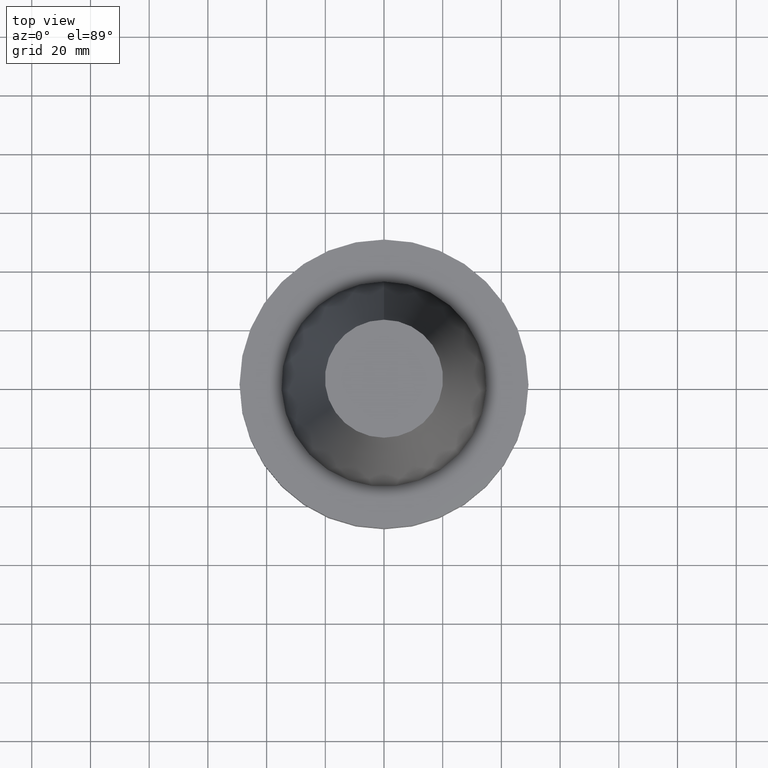
[diagram: clean part render]
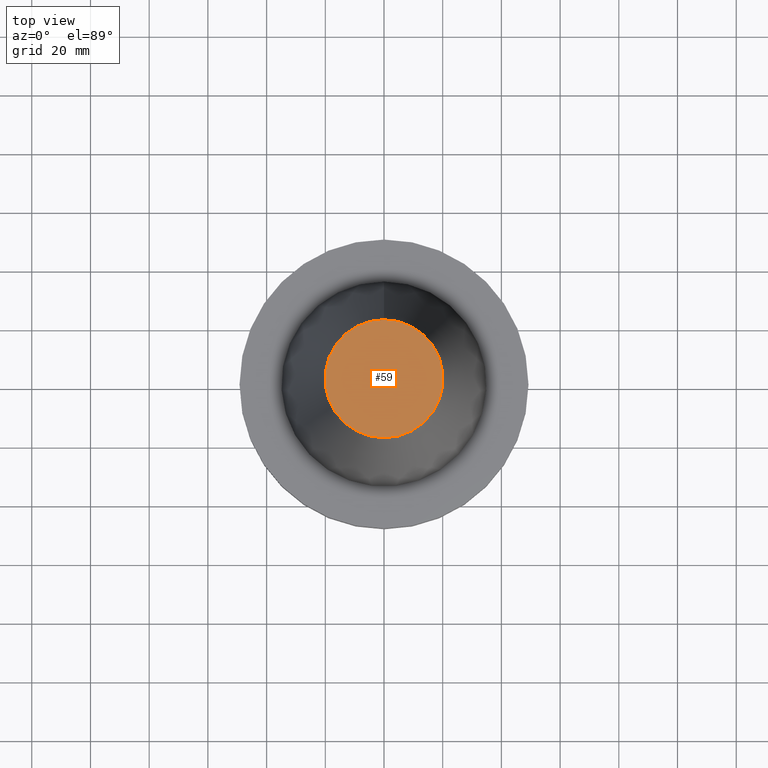
[diagram: same view with one face highlighted and labeled with its STEP entity id]
A machine part, top view. The second image highlights one B-rep face of the part: STEP entity #59.
In plain terms, the highlighted planar face has unit normal (-0, -0, 1).
Its self-contained STEP definition (entity closure, byte-faithful):
#59=ADVANCED_FACE('Unnamed[1]',(#157),#158,.T.);
#63=EDGE_CURVE('Unnamed[1]',#163,#163,#164,.T.);
#157=FACE_OUTER_BOUND('',#291,.T.);
#158=PLANE('',#292);
#163=VERTEX_POINT('',#299);
#164=CIRCLE('',#300,20.1083333297217);
#291=EDGE_LOOP('',(#446));
#292=AXIS2_PLACEMENT_3D('',#447,#448,#449);
#299=CARTESIAN_POINT('',(-6.22120573966855E-015,20.1083333297217,101.6));
#300=AXIS2_PLACEMENT_3D('',#453,#454,#455);
#446=ORIENTED_EDGE('',*,*,#63,.F.);
#447=CARTESIAN_POINT('',(-6.22120573966855E-015,10.0541666648608,101.6));
#448=DIRECTION('',(-6.12323399573677E-017,-1.22464679914735E-016,1.0));
#449=DIRECTION('',(1.23259516440783E-032,-1.0,-1.22464679914735E-016));
#453=CARTESIAN_POINT('',(-6.22120573966855E-015,4.21273945501842E-015,101.6));
#454=DIRECTION('',(6.12323399573677E-017,-1.22384385729695E-016,-1.0));
#455=DIRECTION('',(2.66672958170481E-033,1.0,-1.22384385729695E-016));